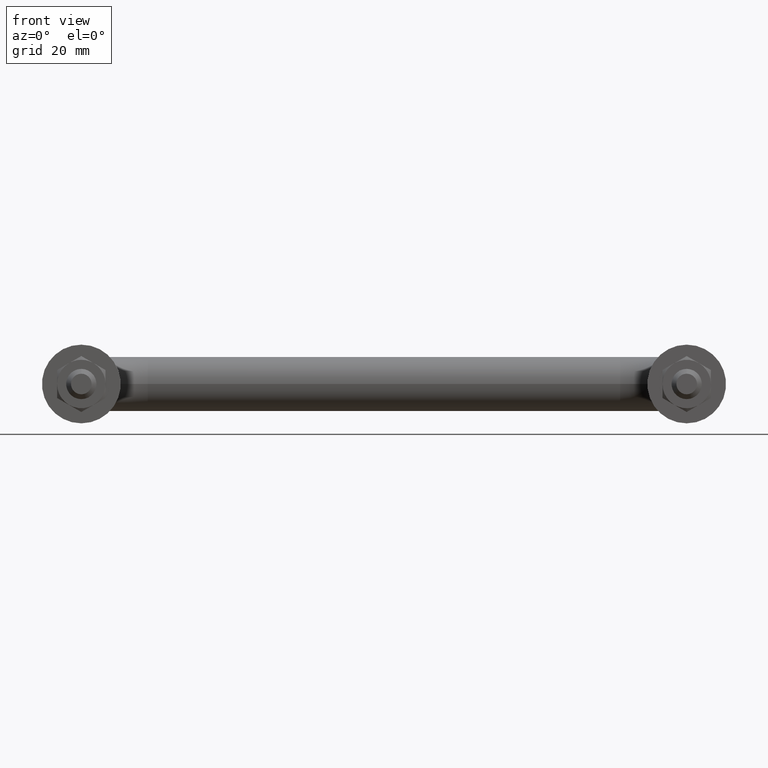
[diagram: clean part render]
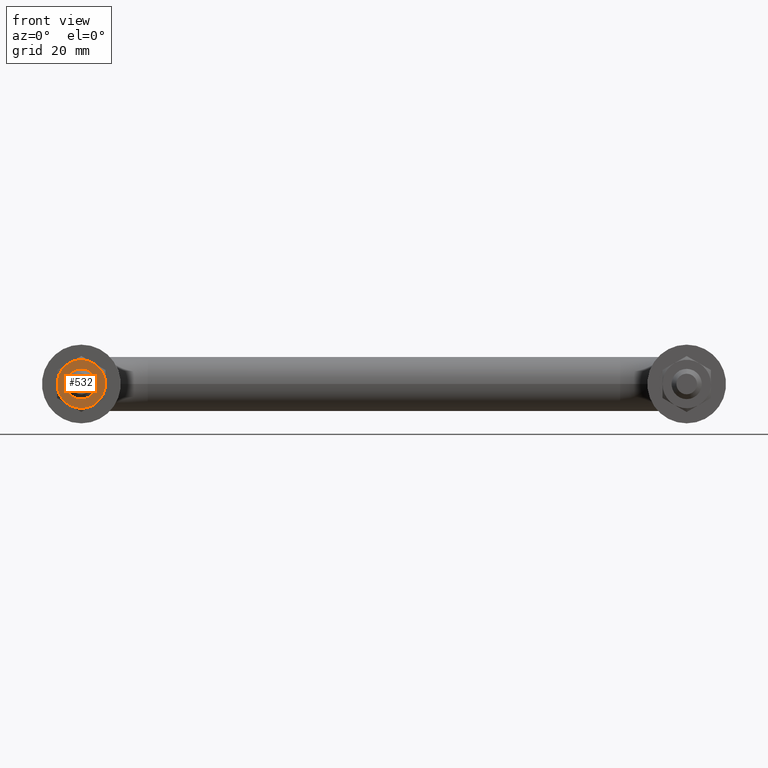
[diagram: same view with one face highlighted and labeled with its STEP entity id]
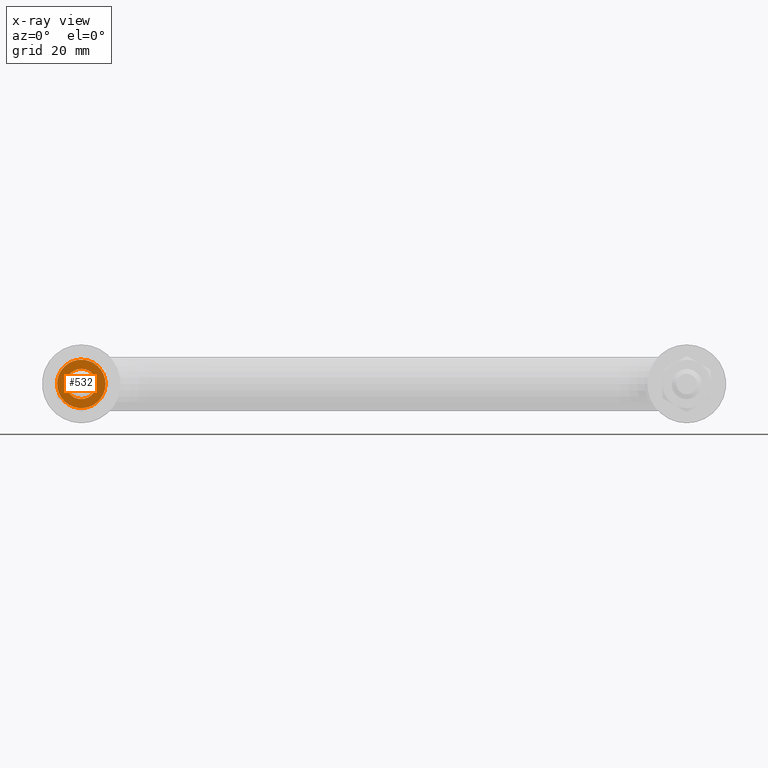
[diagram: x-ray of the same camera — body ghosted, the highlighted face saturated]
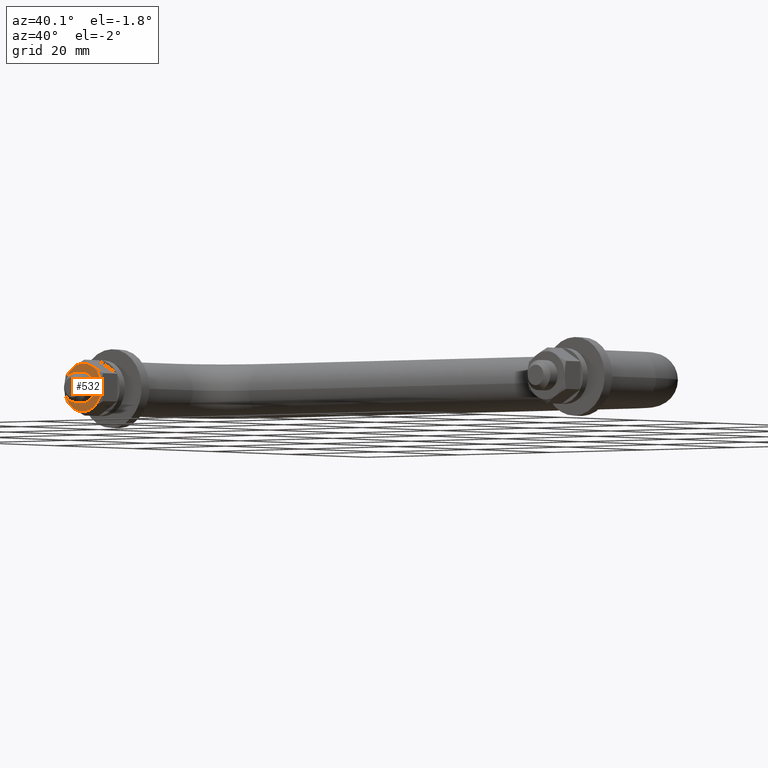
[diagram: same view with one face highlighted and labeled with its STEP entity id]
A machine part, front view. The second image highlights one B-rep face of the part: STEP entity #532.
The next image is the same camera in x-ray: the body ghosted, the highlighted face saturated — about 0% of this face is hidden behind the body in this view.
A second angle (auxiliary view) of the same face is appended — the face is thin or edge-on in the first view.
In plain terms, the highlighted planar face has unit normal (0, -1, -0).
Its self-contained STEP definition (entity closure, byte-faithful):
#80 = AXIS2_PLACEMENT_3D ( 'NONE', #378, #1218, #1645 ) ;
#81 = VERTEX_POINT ( 'NONE', #1680 ) ;
#102 = CARTESIAN_POINT ( 'NONE',  ( 3.061616997868383100E-016, 8.300000000000000700, 2.500000000000000000 ) ) ;
#126 = EDGE_CURVE ( 'NONE', #81, #1587, #989, .T. ) ;
#127 = CARTESIAN_POINT ( 'NONE',  ( -1.999999300624725000, 8.300000000000000700, 3.464102018922175400 ) ) ;
#143 = ORIENTED_EDGE ( 'NONE', *, *, #368, .F. ) ;
#158 = CIRCLE ( 'NONE', #515, 2.500000000000000000 ) ;
#192 = DIRECTION ( 'NONE',  ( 0.0000000000000000000, 0.0000000000000000000, -1.000000000000000000 ) ) ;
#205 = CIRCLE ( 'NONE', #1335, 4.000000000000000000 ) ;
#220 = EDGE_CURVE ( 'NONE', #1130, #81, #1192, .T. ) ;
#221 = CARTESIAN_POINT ( 'NONE',  ( 0.0000000000000000000, 8.300000000000000700, -1.959370166115805200E-015 ) ) ;
#246 = CIRCLE ( 'NONE', #677, 2.500000000000000000 ) ;
#312 = CIRCLE ( 'NONE', #80, 4.000000000000000000 ) ;
#335 = ORIENTED_EDGE ( 'NONE', *, *, #1024, .F. ) ;
#338 = DIRECTION ( 'NONE',  ( 0.0000000000000000000, -1.000000000000000000, 0.0000000000000000000 ) ) ;
#357 = AXIS2_PLACEMENT_3D ( 'NONE', #1383, #1252, #967 ) ;
#363 = DIRECTION ( 'NONE',  ( -0.0000000000000000000, 1.000000000000000000, 0.0000000000000000000 ) ) ;
#364 = CARTESIAN_POINT ( 'NONE',  ( 0.0000000000000000000, 8.300000000000000700, 0.0000000000000000000 ) ) ;
#368 = EDGE_CURVE ( 'NONE', #623, #513, #312, .T. ) ;
#378 = CARTESIAN_POINT ( 'NONE',  ( 0.0000000000000000000, 8.300000000000000700, -1.959370166115805200E-015 ) ) ;
#387 = EDGE_LOOP ( 'NONE', ( #1527, #143, #335, #483, #495, #1506, #1117 ) ) ;
#399 = CARTESIAN_POINT ( 'NONE',  ( 1.999999300624725000, 8.300000000000000700, -3.464102018922179800 ) ) ;
#451 = VERTEX_POINT ( 'NONE', #102 ) ;
#461 = DIRECTION ( 'NONE',  ( -0.0000000000000000000, -1.000000000000000000, -0.0000000000000000000 ) ) ;
#466 = CARTESIAN_POINT ( 'NONE',  ( 0.0000000000000000000, 8.300000000000000700, -2.500000000000000000 ) ) ;
#483 = ORIENTED_EDGE ( 'NONE', *, *, #857, .F. ) ;
#495 = ORIENTED_EDGE ( 'NONE', *, *, #1182, .F. ) ;
#501 = DIRECTION ( 'NONE',  ( -1.776356839400250500E-015, 0.0000000000000000000, 1.000000000000000000 ) ) ;
#513 = VERTEX_POINT ( 'NONE', #127 ) ;
#515 = AXIS2_PLACEMENT_3D ( 'NONE', #364, #1070, #789 ) ;
#532 = ADVANCED_FACE ( 'NONE', ( #829, #1030 ), #721, .T. ) ;
#568 = DIRECTION ( 'NONE',  ( 0.0000000000000000000, 0.0000000000000000000, 1.000000000000000000 ) ) ;
#577 = CIRCLE ( 'NONE', #1652, 4.000000000000000000 ) ;
#598 = DIRECTION ( 'NONE',  ( -0.0000000000000000000, -1.000000000000000000, -0.0000000000000000000 ) ) ;
#619 = DIRECTION ( 'NONE',  ( 0.0000000000000000000, 0.0000000000000000000, 1.000000000000000000 ) ) ;
#623 = VERTEX_POINT ( 'NONE', #886 ) ;
#634 = EDGE_CURVE ( 'NONE', #1468, #451, #246, .T. ) ;
#636 = CARTESIAN_POINT ( 'NONE',  ( 0.0000000000000000000, 8.300000000000000700, -1.959370166115805200E-015 ) ) ;
#677 = AXIS2_PLACEMENT_3D ( 'NONE', #1302, #461, #1161 ) ;
#702 = CARTESIAN_POINT ( 'NONE',  ( 0.0000000000000000000, 8.300000000000000700, -1.959370166115805200E-015 ) ) ;
#721 = PLANE ( 'NONE',  #1662 ) ;
#789 = DIRECTION ( 'NONE',  ( 0.0000000000000000000, 0.0000000000000000000, 1.000000000000000000 ) ) ;
#809 = CARTESIAN_POINT ( 'NONE',  ( 0.0000000000000000000, 8.300000000000000700, -1.959370166115805200E-015 ) ) ;
#829 = FACE_OUTER_BOUND ( 'NONE', #387, .T. ) ;
#857 = EDGE_CURVE ( 'NONE', #1782, #1204, #1781, .T. ) ;
#886 = CARTESIAN_POINT ( 'NONE',  ( 1.999999300624725000, 8.300000000000000700, 3.464102018922170100 ) ) ;
#967 = DIRECTION ( 'NONE',  ( 2.664535259100375700E-015, 0.0000000000000000000, 1.000000000000000000 ) ) ;
#989 = CIRCLE ( 'NONE', #357, 4.000000000000000000 ) ;
#1009 = CARTESIAN_POINT ( 'NONE',  ( 0.0000000000000000000, 8.300000000000000700, 0.0000000000000000000 ) ) ;
#1022 = CARTESIAN_POINT ( 'NONE',  ( -4.000000000000000000, 8.300000000000000700, -1.959370166115805200E-015 ) ) ;
#1024 = EDGE_CURVE ( 'NONE', #1204, #623, #577, .T. ) ;
#1030 = FACE_BOUND ( 'NONE', #1534, .T. ) ;
#1070 = DIRECTION ( 'NONE',  ( -0.0000000000000000000, -1.000000000000000000, -0.0000000000000000000 ) ) ;
#1100 = AXIS2_PLACEMENT_3D ( 'NONE', #809, #1651, #1494 ) ;
#1117 = ORIENTED_EDGE ( 'NONE', *, *, #220, .F. ) ;
#1130 = VERTEX_POINT ( 'NONE', #1022 ) ;
#1161 = DIRECTION ( 'NONE',  ( 0.0000000000000000000, 0.0000000000000000000, 1.000000000000000000 ) ) ;
#1176 = CARTESIAN_POINT ( 'NONE',  ( 0.0000000000000000000, 8.300000000000000700, -1.959370166115805200E-015 ) ) ;
#1182 = EDGE_CURVE ( 'NONE', #1587, #1782, #205, .T. ) ;
#1185 = DIRECTION ( 'NONE',  ( -0.0000000000000000000, -1.000000000000000000, -0.0000000000000000000 ) ) ;
#1192 = CIRCLE ( 'NONE', #1100, 4.000000000000000000 ) ;
#1201 = DIRECTION ( 'NONE',  ( 1.000000000000000000, 0.0000000000000000000, 0.0000000000000000000 ) ) ;
#1204 = VERTEX_POINT ( 'NONE', #1558 ) ;
#1206 = AXIS2_PLACEMENT_3D ( 'NONE', #221, #1185, #619 ) ;
#1218 = DIRECTION ( 'NONE',  ( -0.0000000000000000000, -1.000000000000000000, -0.0000000000000000000 ) ) ;
#1252 = DIRECTION ( 'NONE',  ( -0.0000000000000000000, -1.000000000000000000, -0.0000000000000000000 ) ) ;
#1302 = CARTESIAN_POINT ( 'NONE',  ( 0.0000000000000000000, 8.300000000000000700, 0.0000000000000000000 ) ) ;
#1335 = AXIS2_PLACEMENT_3D ( 'NONE', #702, #598, #568 ) ;
#1383 = CARTESIAN_POINT ( 'NONE',  ( 0.0000000000000000000, 8.300000000000000700, -1.959370166115805200E-015 ) ) ;
#1391 = ORIENTED_EDGE ( 'NONE', *, *, #1522, .T. ) ;
#1426 = EDGE_CURVE ( 'NONE', #513, #1130, #1599, .T. ) ;
#1468 = VERTEX_POINT ( 'NONE', #466 ) ;
#1474 = DIRECTION ( 'NONE',  ( -0.0000000000000000000, -1.000000000000000000, -0.0000000000000000000 ) ) ;
#1487 = CARTESIAN_POINT ( 'NONE',  ( 0.0000000000000000000, 8.300000000000000700, -4.000000000000001800 ) ) ;
#1494 = DIRECTION ( 'NONE',  ( 0.0000000000000000000, 0.0000000000000000000, 1.000000000000000000 ) ) ;
#1506 = ORIENTED_EDGE ( 'NONE', *, *, #126, .F. ) ;
#1522 = EDGE_CURVE ( 'NONE', #451, #1468, #158, .T. ) ;
#1527 = ORIENTED_EDGE ( 'NONE', *, *, #1426, .F. ) ;
#1534 = EDGE_LOOP ( 'NONE', ( #1684, #1391 ) ) ;
#1558 = CARTESIAN_POINT ( 'NONE',  ( 4.000000000000000000, 8.300000000000000700, -1.959370166115805200E-015 ) ) ;
#1587 = VERTEX_POINT ( 'NONE', #1487 ) ;
#1599 = CIRCLE ( 'NONE', #1206, 4.000000000000000000 ) ;
#1607 = AXIS2_PLACEMENT_3D ( 'NONE', #1176, #338, #192 ) ;
#1645 = DIRECTION ( 'NONE',  ( 0.0000000000000000000, 0.0000000000000000000, 1.000000000000000000 ) ) ;
#1651 = DIRECTION ( 'NONE',  ( -0.0000000000000000000, -1.000000000000000000, -0.0000000000000000000 ) ) ;
#1652 = AXIS2_PLACEMENT_3D ( 'NONE', #636, #1474, #501 ) ;
#1662 = AXIS2_PLACEMENT_3D ( 'NONE', #1009, #363, #1201 ) ;
#1680 = CARTESIAN_POINT ( 'NONE',  ( -1.999999300624725000, 8.300000000000000700, -3.464102018922175400 ) ) ;
#1684 = ORIENTED_EDGE ( 'NONE', *, *, #634, .T. ) ;
#1781 = CIRCLE ( 'NONE', #1607, 4.000000000000000000 ) ;
#1782 = VERTEX_POINT ( 'NONE', #399 ) ;